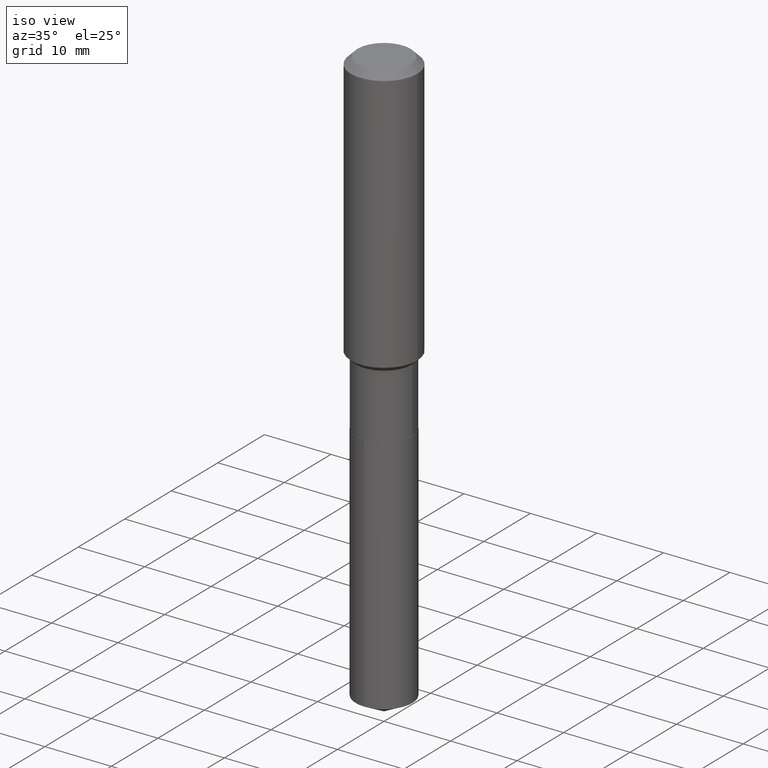
[diagram: clean part render]
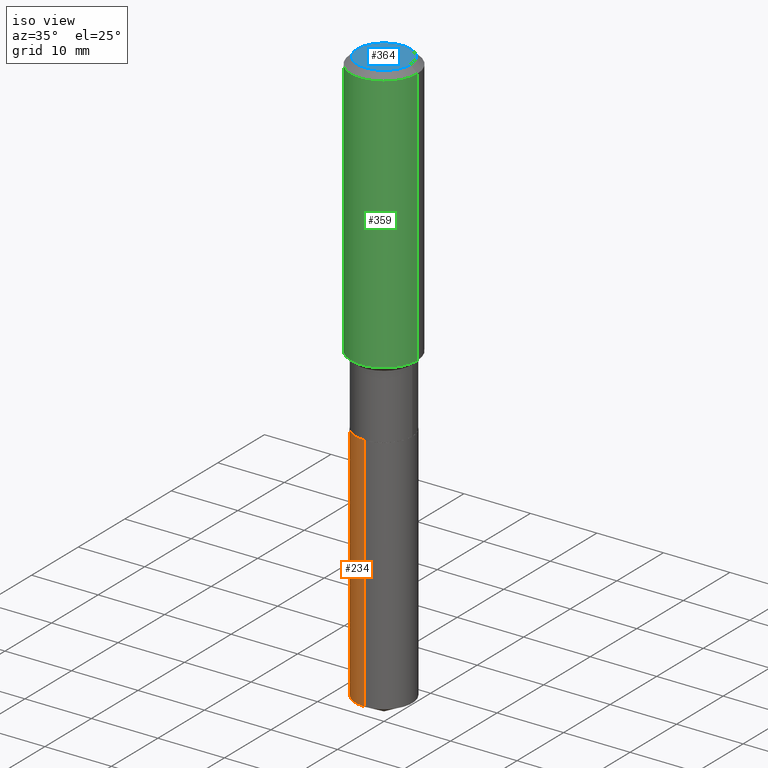
[diagram: same view with three faces highlighted in distinct colors, each labeled with its STEP entity id]
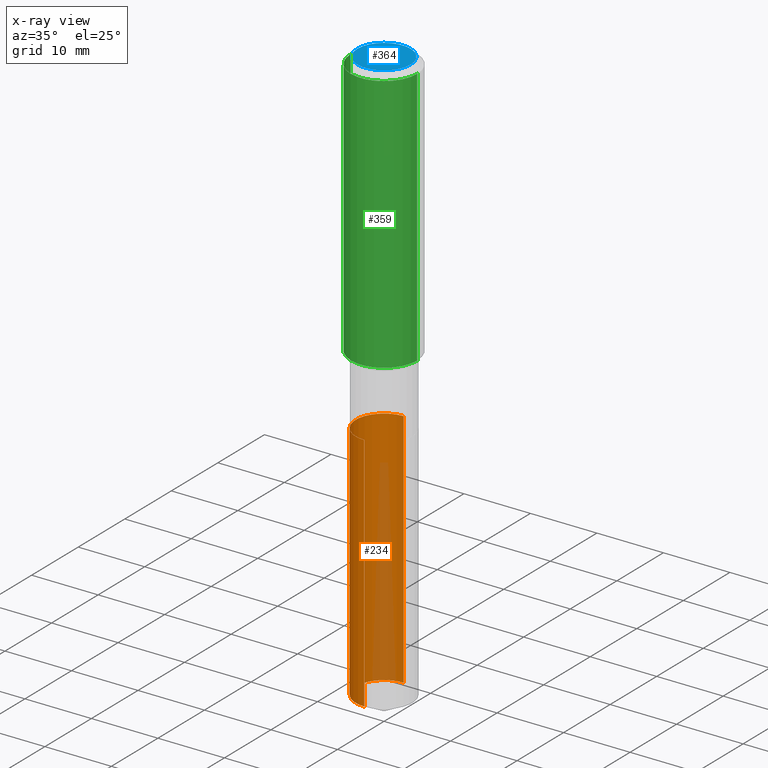
[diagram: x-ray of the same camera — body ghosted, the three highlighted faces saturated]
A machine part, iso view with three faces highlighted in distinct colors.
The next image is the same camera in x-ray (body ghosted, the three faces saturated) — at least one of them is partly hidden behind the body in this view.
Their STEP definitions:

[orange] entity #234 — the highlighted cylindrical surface (edge-blend (fillet) strip) has radius 4.2494 mm, axis along (-0, 0, 1).
#22 = CARTESIAN_POINT ( 'NONE',  ( 1.188737996926731261E-15, 0.1672999999999881249, -3.414945012083035358 ) ) ;
#53 = CARTESIAN_POINT ( 'NONE',  ( 4.861836533576669787E-29, -6.941414049754057014E-15, -1.988099999999999756 ) ) ;
#74 = VERTEX_POINT ( 'NONE', #22 ) ;
#89 = EDGE_LOOP ( 'NONE', ( #428, #352, #267, #100 ) ) ;
#100 = ORIENTED_EDGE ( 'NONE', *, *, #249, .F. ) ;
#101 = LINE ( 'NONE', #450, #367 ) ;
#115 = AXIS2_PLACEMENT_3D ( 'NONE', #161, #170, #141 ) ;
#121 = DIRECTION ( 'NONE',  ( -2.445516292350435561E-29, 3.491413335951692307E-15, 1.000000000000000000 ) ) ;
#123 = CIRCLE ( 'NONE', #291, 0.1673000000000000043 ) ;
#141 = DIRECTION ( 'NONE',  ( -6.982962677686266711E-15, -1.000000000000000000, 3.265807523806650431E-15 ) ) ;
#142 = VERTEX_POINT ( 'NONE', #465 ) ;
#152 = EDGE_CURVE ( 'NONE', #74, #142, #101, .T. ) ;
#159 = DIRECTION ( 'NONE',  ( -2.445516292350435841E-29, 3.491413335951692307E-15, 1.000000000000000000 ) ) ;
#161 = CARTESIAN_POINT ( 'NONE',  ( 8.351209257284685878E-29, -1.192311975327691993E-14, -3.414945012083034914 ) ) ;
#163 = CARTESIAN_POINT ( 'NONE',  ( 4.861836533576669787E-29, -6.941414049754057014E-15, -1.988099999999999756 ) ) ;
#170 = DIRECTION ( 'NONE',  ( -2.445516292350435841E-29, 3.491413335951692307E-15, 1.000000000000000000 ) ) ;
#188 = CIRCLE ( 'NONE', #115, 0.1673000000000000043 ) ;
#192 = LINE ( 'NONE', #341, #404 ) ;
#193 = FACE_OUTER_BOUND ( 'NONE', #89, .T. ) ;
#215 = CARTESIAN_POINT ( 'NONE',  ( -1.168249655976829167E-15, -0.1673000000000119669, -3.414945012083034026 ) ) ;
#232 = DIRECTION ( 'NONE',  ( -6.982962677686266711E-15, -1.000000000000000000, 3.265807523806650431E-15 ) ) ;
#234 = ADVANCED_FACE ( 'NONE', ( #193 ), #285, .T. ) ;
#249 = EDGE_CURVE ( 'NONE', #142, #321, #123, .T. ) ;
#267 = ORIENTED_EDGE ( 'NONE', *, *, #436, .T. ) ;
#285 = CYLINDRICAL_SURFACE ( 'NONE', #483, 0.1673000000000000043 ) ;
#291 = AXIS2_PLACEMENT_3D ( 'NONE', #53, #380, #232 ) ;
#321 = VERTEX_POINT ( 'NONE', #371 ) ;
#341 = CARTESIAN_POINT ( 'NONE',  ( -1.168249655976863877E-15, -0.1673000000000069432, -1.988099999999999312 ) ) ;
#352 = ORIENTED_EDGE ( 'NONE', *, *, #481, .T. ) ;
#367 = VECTOR ( 'NONE', #121, 39.37007874015748143 ) ;
#371 = CARTESIAN_POINT ( 'NONE',  ( -1.168249655976863877E-15, -0.1673000000000069432, -1.988099999999999312 ) ) ;
#380 = DIRECTION ( 'NONE',  ( -2.445516292350435841E-29, 3.491413335951692307E-15, 1.000000000000000000 ) ) ;
#404 = VECTOR ( 'NONE', #489, 39.37007874015748143 ) ;
#413 = DIRECTION ( 'NONE',  ( -6.982962677686266711E-15, -1.000000000000000000, 3.265807523806650431E-15 ) ) ;
#428 = ORIENTED_EDGE ( 'NONE', *, *, #152, .F. ) ;
#436 = EDGE_CURVE ( 'NONE', #490, #321, #192, .T. ) ;
#450 = CARTESIAN_POINT ( 'NONE',  ( 1.188737996926695959E-15, 0.1672999999999930931, -1.988100000000000200 ) ) ;
#465 = CARTESIAN_POINT ( 'NONE',  ( 1.188737996926731261E-15, 0.1672999999999930931, -1.988100000000000200 ) ) ;
#481 = EDGE_CURVE ( 'NONE', #74, #490, #188, .T. ) ;
#483 = AXIS2_PLACEMENT_3D ( 'NONE', #163, #159, #413 ) ;
#489 = DIRECTION ( 'NONE',  ( -2.445516292350435561E-29, 3.491413335951692307E-15, 1.000000000000000000 ) ) ;
#490 = VERTEX_POINT ( 'NONE', #215 ) ;

[blue] entity #364 — the highlighted planar face has unit normal (0, -0, -1).
#36 = PLANE ( 'NONE',  #261 ) ;
#42 = DIRECTION ( 'NONE',  ( 1.000000000000000000, -6.982962677686265922E-15, 4.876223630392693006E-29 ) ) ;
#49 = CARTESIAN_POINT ( 'NONE',  ( -9.427742298522567634E-47, 1.346031739168368355E-32, 3.855188123715870730E-18 ) ) ;
#92 = DIRECTION ( 'NONE',  ( -2.445468806185136597E-29, 3.491481338843145583E-15, 1.000000000000000000 ) ) ;
#107 = CIRCLE ( 'NONE', #361, 0.1574800000000000089 ) ;
#125 = ORIENTED_EDGE ( 'NONE', *, *, #318, .T. ) ;
#129 = DIRECTION ( 'NONE',  ( 2.438088387897960049E-29, -3.491481338843145188E-15, -1.000000000000000000 ) ) ;
#133 = FACE_OUTER_BOUND ( 'NONE', #220, .T. ) ;
#201 = DIRECTION ( 'NONE',  ( -2.445468806185136597E-29, 3.491481338843145583E-15, 1.000000000000000000 ) ) ;
#205 = DIRECTION ( 'NONE',  ( -1.000000000000000000, 6.982962677686265922E-15, -4.876176775795935793E-29 ) ) ;
#220 = EDGE_LOOP ( 'NONE', ( #125, #346 ) ) ;
#227 = VERTEX_POINT ( 'NONE', #421 ) ;
#261 = AXIS2_PLACEMENT_3D ( 'NONE', #378, #129, #205 ) ;
#264 = VERTEX_POINT ( 'NONE', #308 ) ;
#280 = CARTESIAN_POINT ( 'NONE',  ( -9.427742298522567634E-47, 1.346031739168368355E-32, 3.855188123715870730E-18 ) ) ;
#303 = DIRECTION ( 'NONE',  ( 1.000000000000000000, -6.982962677686265922E-15, 4.876223630392693006E-29 ) ) ;
#308 = CARTESIAN_POINT ( 'NONE',  ( 0.1574800000000000089, -1.284169937930321189E-15, 3.855188123724205385E-18 ) ) ;
#318 = EDGE_CURVE ( 'NONE', #227, #264, #107, .T. ) ;
#323 = AXIS2_PLACEMENT_3D ( 'NONE', #49, #201, #303 ) ;
#346 = ORIENTED_EDGE ( 'NONE', *, *, #447, .T. ) ;
#361 = AXIS2_PLACEMENT_3D ( 'NONE', #280, #92, #42 ) ;
#364 = ADVANCED_FACE ( 'NONE', ( #133 ), #36, .F. ) ;
#378 = CARTESIAN_POINT ( 'NONE',  ( -4.713871149261283817E-47, 6.730158695841841775E-33, 1.927594061857935365E-18 ) ) ;
#400 = CIRCLE ( 'NONE', #323, 0.1574800000000000089 ) ;
#421 = CARTESIAN_POINT ( 'NONE',  ( -0.1574800000000000089, 1.168406772637159618E-15, 3.855188123707939751E-18 ) ) ;
#447 = EDGE_CURVE ( 'NONE', #264, #227, #400, .T. ) ;

[green] entity #359 — the highlighted cylindrical surface (partial cylindrical patch) has radius 5 mm, axis along (-0, 0, 1).
#38 = CARTESIAN_POINT ( 'NONE',  ( 0.1968500000000001082, -1.374596203102542397E-15, 9.598753983154305062E-30 ) ) ;
#50 = ORIENTED_EDGE ( 'NONE', *, *, #156, .F. ) ;
#52 = VERTEX_POINT ( 'NONE', #175 ) ;
#75 = EDGE_CURVE ( 'NONE', #299, #52, #147, .T. ) ;
#82 = VECTOR ( 'NONE', #119, 39.37007874015748143 ) ;
#88 = LINE ( 'NONE', #38, #82 ) ;
#110 = ORIENTED_EDGE ( 'NONE', *, *, #75, .F. ) ;
#114 = VERTEX_POINT ( 'NONE', #455 ) ;
#119 = DIRECTION ( 'NONE',  ( -2.445468806185136877E-29, 3.491481338843145188E-15, 1.000000000000000000 ) ) ;
#124 = CYLINDRICAL_SURFACE ( 'NONE', #230, 0.1968500000000001082 ) ;
#147 = CIRCLE ( 'NONE', #368, 0.1968500000000000250 ) ;
#151 = ORIENTED_EDGE ( 'NONE', *, *, #402, .T. ) ;
#156 = EDGE_CURVE ( 'NONE', #388, #299, #429, .T. ) ;
#157 = DIRECTION ( 'NONE',  ( 1.000000000000000000, -6.982962677686265922E-15, 0.000000000000000000 ) ) ;
#175 = CARTESIAN_POINT ( 'NONE',  ( 0.1968500000000000250, -1.512055823412797189E-15, -0.03937000000000027283 ) ) ;
#176 = VECTOR ( 'NONE', #389, 39.37007874015748143 ) ;
#206 = EDGE_LOOP ( 'NONE', ( #50, #401, #151, #110 ) ) ;
#228 = DIRECTION ( 'NONE',  ( 1.000000000000000000, -6.982962677686266711E-15, 4.876176775795935793E-29 ) ) ;
#230 = AXIS2_PLACEMENT_3D ( 'NONE', #351, #231, #228 ) ;
#231 = DIRECTION ( 'NONE',  ( -2.445468806185136597E-29, 3.491481338843145583E-15, 1.000000000000000000 ) ) ;
#276 = CARTESIAN_POINT ( 'NONE',  ( -0.1968500000000002192, -4.096015381660639660E-15, -1.573749999999999538 ) ) ;
#299 = VERTEX_POINT ( 'NONE', #405 ) ;
#307 = FACE_OUTER_BOUND ( 'NONE', #206, .T. ) ;
#319 = CARTESIAN_POINT ( 'NONE',  ( 9.627810689950950651E-31, -1.374596203102555808E-16, -0.03937000000000027283 ) ) ;
#331 = EDGE_CURVE ( 'NONE', #388, #114, #369, .T. ) ;
#351 = CARTESIAN_POINT ( 'NONE',  ( 0.000000000000000000, 0.000000000000000000, 0.000000000000000000 ) ) ;
#359 = ADVANCED_FACE ( 'NONE', ( #307 ), #124, .T. ) ;
#368 = AXIS2_PLACEMENT_3D ( 'NONE', #319, #461, #430 ) ;
#369 = CIRCLE ( 'NONE', #451, 0.1968500000000002192 ) ;
#373 = CARTESIAN_POINT ( 'NONE',  ( -0.1968500000000001082, 1.398703375343757985E-15, -9.682923725166787881E-30 ) ) ;
#375 = CARTESIAN_POINT ( 'NONE',  ( 3.848556533733857239E-29, -5.494718757004399025E-15, -1.573749999999999538 ) ) ;
#388 = VERTEX_POINT ( 'NONE', #276 ) ;
#389 = DIRECTION ( 'NONE',  ( -2.445468806185136877E-29, 3.491481338843145188E-15, 1.000000000000000000 ) ) ;
#401 = ORIENTED_EDGE ( 'NONE', *, *, #331, .T. ) ;
#402 = EDGE_CURVE ( 'NONE', #114, #52, #88, .T. ) ;
#405 = CARTESIAN_POINT ( 'NONE',  ( -0.1968500000000000250, -1.417385813313568924E-15, -0.03937000000000027283 ) ) ;
#429 = LINE ( 'NONE', #373, #176 ) ;
#430 = DIRECTION ( 'NONE',  ( 1.000000000000000000, -6.982962677686265922E-15, 0.000000000000000000 ) ) ;
#451 = AXIS2_PLACEMENT_3D ( 'NONE', #375, #462, #157 ) ;
#455 = CARTESIAN_POINT ( 'NONE',  ( 0.1968500000000002192, -6.869314960106940633E-15, -1.573749999999999538 ) ) ;
#461 = DIRECTION ( 'NONE',  ( -2.445468806185136597E-29, 3.491481338843145583E-15, 1.000000000000000000 ) ) ;
#462 = DIRECTION ( 'NONE',  ( -2.445468806185136597E-29, 3.491481338843145583E-15, 1.000000000000000000 ) ) ;